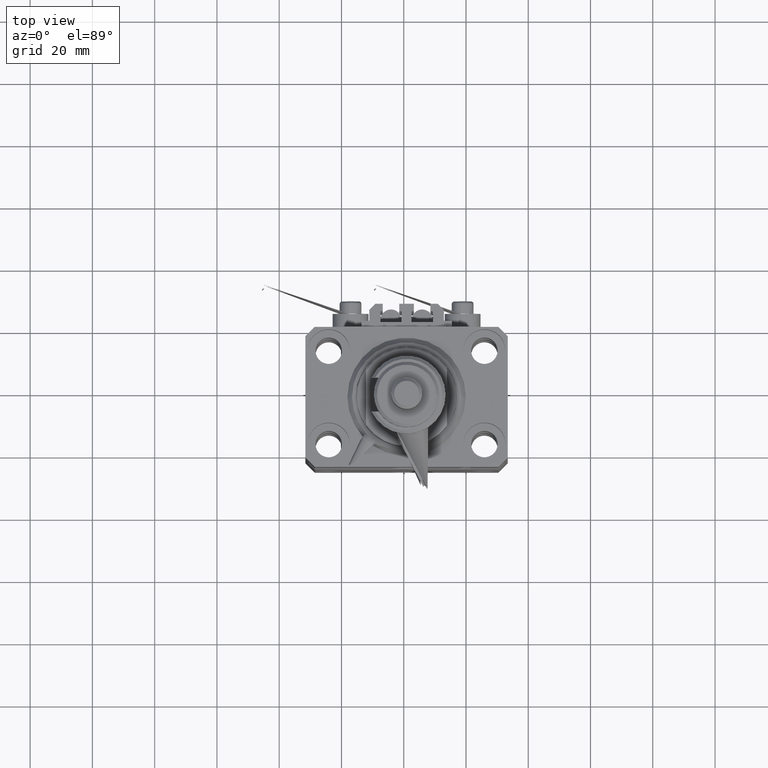
[diagram: clean part render]
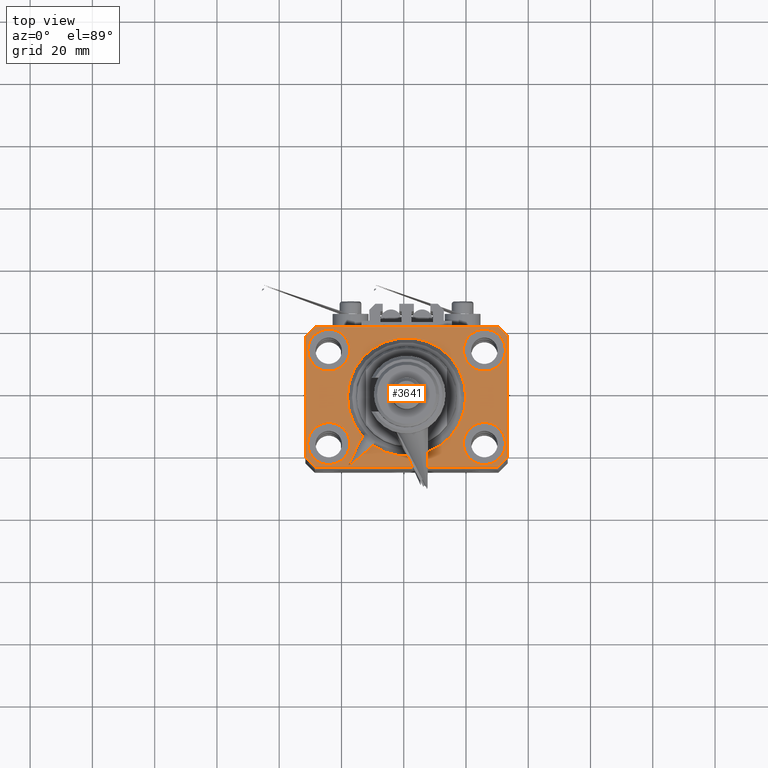
[diagram: same view with one face highlighted and labeled with its STEP entity id]
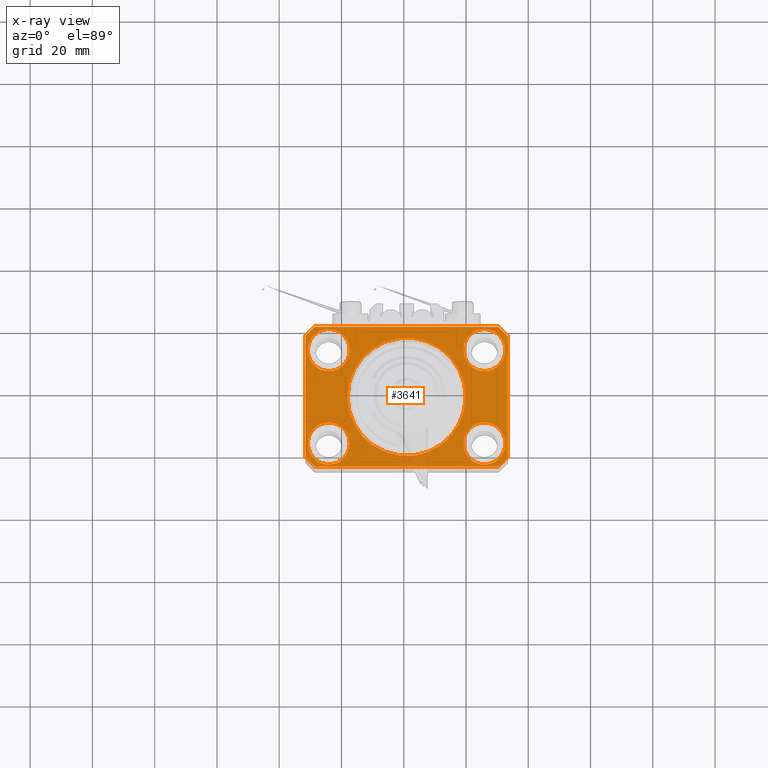
[diagram: x-ray of the same camera — body ghosted, the highlighted face saturated]
A machine part, top view. The second image highlights one B-rep face of the part: STEP entity #3641.
The next image is the same camera in x-ray: the body ghosted, the highlighted face saturated — about 0% of this face is hidden behind the body in this view.
In plain terms, the highlighted planar face has unit normal (0, 0, 1).
Its self-contained STEP definition (entity closure, byte-faithful):
#42 = VERTEX_POINT ( 'NONE', #15249 ) ;
#117 = LINE ( 'NONE', #18248, #11905 ) ;
#422 = ORIENTED_EDGE ( 'NONE', *, *, #37680, .F. ) ;
#539 = AXIS2_PLACEMENT_3D ( 'NONE', #50625, #26974, #8294 ) ;
#754 = CIRCLE ( 'NONE', #43870, 6.749999999958452790 ) ;
#1193 = AXIS2_PLACEMENT_3D ( 'NONE', #25456, #22605, #10686 ) ;
#1553 = DIRECTION ( 'NONE',  ( 1.000000000000000000, 0.000000000000000000, 0.000000000000000000 ) ) ;
#1557 = DIRECTION ( 'NONE',  ( 0.000000000000000000, 0.000000000000000000, 1.000000000000000000 ) ) ;
#1648 = VECTOR ( 'NONE', #26004, 1000.000000000000114 ) ;
#2068 = EDGE_CURVE ( 'NONE', #37032, #7257, #37872, .T. ) ;
#2097 = FACE_BOUND ( 'NONE', #37804, .T. ) ;
#2256 = LINE ( 'NONE', #30010, #40400 ) ;
#2539 = VERTEX_POINT ( 'NONE', #11326 ) ;
#2871 = FACE_BOUND ( 'NONE', #32856, .T. ) ;
#3470 = EDGE_LOOP ( 'NONE', ( #422, #36733 ) ) ;
#3641 = ADVANCED_FACE ( 'NONE', ( #2871, #2097, #30617, #46205, #26730, #38667 ), #34776, .T. ) ;
#3865 = ORIENTED_EDGE ( 'NONE', *, *, #35394, .T. ) ;
#5088 = CIRCLE ( 'NONE', #39916, 6.749999999977465137 ) ;
#5517 = DIRECTION ( 'NONE',  ( 0.000000000000000000, 0.000000000000000000, 1.000000000000000000 ) ) ;
#5659 = CARTESIAN_POINT ( 'NONE',  ( -25.00000000000000355, -15.00000000000000000, 0.000000000000000000 ) ) ;
#5771 = VECTOR ( 'NONE', #20051, 1000.000000000000000 ) ;
#7257 = VERTEX_POINT ( 'NONE', #38482 ) ;
#7513 = ORIENTED_EDGE ( 'NONE', *, *, #25042, .F. ) ;
#7536 = VERTEX_POINT ( 'NONE', #39892 ) ;
#7652 = CIRCLE ( 'NONE', #31685, 19.00000000000000000 ) ;
#8294 = DIRECTION ( 'NONE',  ( 1.000000000000000000, 0.000000000000000000, -0.000000000000000000 ) ) ;
#8834 = CARTESIAN_POINT ( 'NONE',  ( -29.49999999999650413, 22.49999999999949907, 0.000000000000000000 ) ) ;
#9163 = DIRECTION ( 'NONE',  ( 0.000000000000000000, 0.000000000000000000, 1.000000000000000000 ) ) ;
#9620 = LINE ( 'NONE', #17131, #20019 ) ;
#9776 = EDGE_CURVE ( 'NONE', #2539, #47836, #754, .T. ) ;
#9804 = DIRECTION ( 'NONE',  ( 0.000000000000000000, 0.000000000000000000, 1.000000000000000000 ) ) ;
#9860 = VERTEX_POINT ( 'NONE', #33003 ) ;
#9956 = DIRECTION ( 'NONE',  ( 1.000000000000000000, 1.176083712526788232E-16, 0.000000000000000000 ) ) ;
#10686 = DIRECTION ( 'NONE',  ( 1.000000000000000000, 0.000000000000000000, 0.000000000000000000 ) ) ;
#11326 = CARTESIAN_POINT ( 'NONE',  ( 31.74999999995845101, 15.00000000000000888, 0.000000000000000000 ) ) ;
#11690 = CARTESIAN_POINT ( 'NONE',  ( -18.24999999995846167, -15.00000000000000000, 0.000000000000000000 ) ) ;
#11732 = CIRCLE ( 'NONE', #39076, 6.749999999977465137 ) ;
#11866 = DIRECTION ( 'NONE',  ( 0.000000000000000000, 0.000000000000000000, 1.000000000000000000 ) ) ;
#11905 = VECTOR ( 'NONE', #9956, 1000.000000000000000 ) ;
#12010 = CIRCLE ( 'NONE', #31090, 6.750000000022533087 ) ;
#12245 = ORIENTED_EDGE ( 'NONE', *, *, #28558, .T. ) ;
#12912 = EDGE_LOOP ( 'NONE', ( #3865, #16751, #12245, #30642, #32665, #44250, #32072, #26384 ) ) ;
#13772 = VERTEX_POINT ( 'NONE', #16860 ) ;
#13799 = LINE ( 'NONE', #48838, #19836 ) ;
#13802 = DIRECTION ( 'NONE',  ( 0.7071067811865474617, -0.7071067811865474617, 0.000000000000000000 ) ) ;
#13814 = VERTEX_POINT ( 'NONE', #48528 ) ;
#14424 = ORIENTED_EDGE ( 'NONE', *, *, #50937, .F. ) ;
#15249 = CARTESIAN_POINT ( 'NONE',  ( -32.49999999999650413, 19.49999999999949907, 0.000000000000000000 ) ) ;
#15781 = VERTEX_POINT ( 'NONE', #17071 ) ;
#16160 = CIRCLE ( 'NONE', #45996, 6.749999999958452790 ) ;
#16751 = ORIENTED_EDGE ( 'NONE', *, *, #37491, .T. ) ;
#16853 = EDGE_CURVE ( 'NONE', #21218, #7536, #40716, .T. ) ;
#16860 = CARTESIAN_POINT ( 'NONE',  ( -29.49999999999650413, -22.49999999999949907, 0.000000000000000000 ) ) ;
#17071 = CARTESIAN_POINT ( 'NONE',  ( -31.75000000002253842, 15.00000000000000000, 0.000000000000000000 ) ) ;
#17131 = CARTESIAN_POINT ( 'NONE',  ( 32.49999999999651124, -19.49999999999949196, 0.000000000000000000 ) ) ;
#17466 = CARTESIAN_POINT ( 'NONE',  ( 0.000000000000000000, 0.000000000000000000, 0.000000000000000000 ) ) ;
#17507 = EDGE_CURVE ( 'NONE', #21864, #13814, #5088, .T. ) ;
#18043 = CARTESIAN_POINT ( 'NONE',  ( 32.49999999999651124, -19.49999999999949196, 0.000000000000000000 ) ) ;
#18248 = CARTESIAN_POINT ( 'NONE',  ( -29.49999999999650413, -22.49999999999949907, 0.000000000000000000 ) ) ;
#19193 = VERTEX_POINT ( 'NONE', #22969 ) ;
#19275 = EDGE_CURVE ( 'NONE', #46309, #9860, #7652, .T. ) ;
#19836 = VECTOR ( 'NONE', #45469, 1000.000000000000000 ) ;
#19908 = DIRECTION ( 'NONE',  ( 1.000000000000000000, 0.000000000000000000, 0.000000000000000000 ) ) ;
#20019 = VECTOR ( 'NONE', #24919, 1000.000000000000000 ) ;
#20051 = DIRECTION ( 'NONE',  ( 0.7071067811865483499, 0.7071067811865466846, 0.000000000000000000 ) ) ;
#20166 = CIRCLE ( 'NONE', #1193, 6.750000000022533087 ) ;
#20370 = CARTESIAN_POINT ( 'NONE',  ( 18.25000000002253842, -15.00000000000000000, 0.000000000000000000 ) ) ;
#21218 = VERTEX_POINT ( 'NONE', #11690 ) ;
#21529 = DIRECTION ( 'NONE',  ( 0.000000000000000000, 0.000000000000000000, 1.000000000000000000 ) ) ;
#21864 = VERTEX_POINT ( 'NONE', #20370 ) ;
#21926 = EDGE_LOOP ( 'NONE', ( #27073, #7513 ) ) ;
#22605 = DIRECTION ( 'NONE',  ( 0.000000000000000000, 0.000000000000000000, 1.000000000000000000 ) ) ;
#22882 = CARTESIAN_POINT ( 'NONE',  ( -29.49999999999650413, 22.49999999999949907, 0.000000000000000000 ) ) ;
#22969 = CARTESIAN_POINT ( 'NONE',  ( -18.24999999997747224, 15.00000000000000000, 0.000000000000000000 ) ) ;
#24131 = AXIS2_PLACEMENT_3D ( 'NONE', #47425, #11866, #19908 ) ;
#24919 = DIRECTION ( 'NONE',  ( 1.334402673828349134E-14, 1.000000000000000000, 0.000000000000000000 ) ) ;
#24969 = CARTESIAN_POINT ( 'NONE',  ( -25.00000000000000355, 15.00000000000000000, 0.000000000000000000 ) ) ;
#24990 = DIRECTION ( 'NONE',  ( 0.000000000000000000, 0.000000000000000000, 1.000000000000000000 ) ) ;
#25042 = EDGE_CURVE ( 'NONE', #15781, #19193, #12010, .T. ) ;
#25456 = CARTESIAN_POINT ( 'NONE',  ( -25.00000000000000355, 15.00000000000000000, 0.000000000000000000 ) ) ;
#25615 = DIRECTION ( 'NONE',  ( 1.000000000000000000, 0.000000000000000000, 0.000000000000000000 ) ) ;
#26004 = DIRECTION ( 'NONE',  ( -0.7071067811865474617, -0.7071067811865474617, 0.000000000000000000 ) ) ;
#26092 = CARTESIAN_POINT ( 'NONE',  ( 18.25000000004154543, 15.00000000000000888, 0.000000000000000000 ) ) ;
#26384 = ORIENTED_EDGE ( 'NONE', *, *, #2068, .T. ) ;
#26730 = FACE_BOUND ( 'NONE', #3470, .T. ) ;
#26974 = DIRECTION ( 'NONE',  ( 0.000000000000000000, 0.000000000000000000, 1.000000000000000000 ) ) ;
#27073 = ORIENTED_EDGE ( 'NONE', *, *, #46640, .F. ) ;
#27139 = CARTESIAN_POINT ( 'NONE',  ( 32.49999999999702993, 19.49999999999945999, 0.000000000000000000 ) ) ;
#27401 = EDGE_CURVE ( 'NONE', #7536, #21218, #30405, .T. ) ;
#27830 = LINE ( 'NONE', #43665, #5771 ) ;
#28342 = DIRECTION ( 'NONE',  ( 0.000000000000000000, 0.000000000000000000, 1.000000000000000000 ) ) ;
#28558 = EDGE_CURVE ( 'NONE', #42, #41859, #2256, .T. ) ;
#29450 = EDGE_LOOP ( 'NONE', ( #48467, #14424 ) ) ;
#30010 = CARTESIAN_POINT ( 'NONE',  ( -32.49999999999650413, 19.49999999999949907, 0.000000000000000000 ) ) ;
#30059 = EDGE_CURVE ( 'NONE', #41859, #13772, #49373, .T. ) ;
#30405 = CIRCLE ( 'NONE', #46158, 6.750000000041541881 ) ;
#30617 = FACE_BOUND ( 'NONE', #29450, .T. ) ;
#30642 = ORIENTED_EDGE ( 'NONE', *, *, #30059, .T. ) ;
#31090 = AXIS2_PLACEMENT_3D ( 'NONE', #24969, #5517, #32517 ) ;
#31508 = CIRCLE ( 'NONE', #42291, 19.00000000000000000 ) ;
#31685 = AXIS2_PLACEMENT_3D ( 'NONE', #17466, #24990, #32536 ) ;
#32072 = ORIENTED_EDGE ( 'NONE', *, *, #40540, .T. ) ;
#32517 = DIRECTION ( 'NONE',  ( 1.000000000000000000, 0.000000000000000000, 0.000000000000000000 ) ) ;
#32536 = DIRECTION ( 'NONE',  ( 1.000000000000000000, 0.000000000000000000, 0.000000000000000000 ) ) ;
#32665 = ORIENTED_EDGE ( 'NONE', *, *, #48034, .T. ) ;
#32733 = CARTESIAN_POINT ( 'NONE',  ( 29.49999999999650413, -22.49999999999949196, 0.000000000000000000 ) ) ;
#32856 = EDGE_LOOP ( 'NONE', ( #37718, #48827 ) ) ;
#33003 = CARTESIAN_POINT ( 'NONE',  ( 19.00000000000000000, 0.000000000000000000, 0.000000000000000000 ) ) ;
#33257 = EDGE_CURVE ( 'NONE', #45597, #41243, #27830, .T. ) ;
#34127 = ORIENTED_EDGE ( 'NONE', *, *, #17507, .F. ) ;
#34164 = DIRECTION ( 'NONE',  ( 0.000000000000000000, -1.000000000000000000, 0.000000000000000000 ) ) ;
#34776 = PLANE ( 'NONE',  #539 ) ;
#35394 = EDGE_CURVE ( 'NONE', #7257, #37754, #13799, .T. ) ;
#35434 = CARTESIAN_POINT ( 'NONE',  ( -19.00000000000000000, 2.326828918379970970E-15, 0.000000000000000000 ) ) ;
#36326 = VECTOR ( 'NONE', #13802, 1000.000000000000114 ) ;
#36733 = ORIENTED_EDGE ( 'NONE', *, *, #19275, .F. ) ;
#37032 = VERTEX_POINT ( 'NONE', #27139 ) ;
#37103 = CARTESIAN_POINT ( 'NONE',  ( 24.99999999999999645, 15.00000000000000888, 0.000000000000000000 ) ) ;
#37491 = EDGE_CURVE ( 'NONE', #37754, #42, #38203, .T. ) ;
#37680 = EDGE_CURVE ( 'NONE', #9860, #46309, #31508, .T. ) ;
#37718 = ORIENTED_EDGE ( 'NONE', *, *, #16853, .F. ) ;
#37754 = VERTEX_POINT ( 'NONE', #8834 ) ;
#37804 = EDGE_LOOP ( 'NONE', ( #45404, #34127 ) ) ;
#37836 = DIRECTION ( 'NONE',  ( 0.000000000000000000, 0.000000000000000000, 1.000000000000000000 ) ) ;
#37872 = LINE ( 'NONE', #41504, #51088 ) ;
#38203 = LINE ( 'NONE', #22882, #1648 ) ;
#38453 = CARTESIAN_POINT ( 'NONE',  ( -32.49999999999650413, -19.49999999999949907, 0.000000000000000000 ) ) ;
#38482 = CARTESIAN_POINT ( 'NONE',  ( 29.49999999999707967, 22.49999999999951328, 0.000000000000000000 ) ) ;
#38667 = FACE_OUTER_BOUND ( 'NONE', #12912, .T. ) ;
#39076 = AXIS2_PLACEMENT_3D ( 'NONE', #48991, #9804, #25615 ) ;
#39892 = CARTESIAN_POINT ( 'NONE',  ( -31.75000000004154899, -15.00000000000000000, 0.000000000000000000 ) ) ;
#39916 = AXIS2_PLACEMENT_3D ( 'NONE', #40046, #9163, #48355 ) ;
#40046 = CARTESIAN_POINT ( 'NONE',  ( 25.00000000000000355, -15.00000000000000000, 0.000000000000000000 ) ) ;
#40175 = EDGE_CURVE ( 'NONE', #13814, #21864, #11732, .T. ) ;
#40400 = VECTOR ( 'NONE', #34164, 1000.000000000000000 ) ;
#40540 = EDGE_CURVE ( 'NONE', #41243, #37032, #9620, .T. ) ;
#40716 = CIRCLE ( 'NONE', #24131, 6.750000000041541881 ) ;
#41243 = VERTEX_POINT ( 'NONE', #18043 ) ;
#41504 = CARTESIAN_POINT ( 'NONE',  ( 32.49999999999702993, 19.49999999999945999, 0.000000000000000000 ) ) ;
#41859 = VERTEX_POINT ( 'NONE', #44393 ) ;
#42239 = DIRECTION ( 'NONE',  ( 1.000000000000000000, 0.000000000000000000, 0.000000000000000000 ) ) ;
#42291 = AXIS2_PLACEMENT_3D ( 'NONE', #49046, #21529, #1553 ) ;
#43665 = CARTESIAN_POINT ( 'NONE',  ( 29.49999999999650413, -22.49999999999949196, 0.000000000000000000 ) ) ;
#43870 = AXIS2_PLACEMENT_3D ( 'NONE', #47572, #28342, #44178 ) ;
#44178 = DIRECTION ( 'NONE',  ( 1.000000000000000000, 0.000000000000000000, 0.000000000000000000 ) ) ;
#44250 = ORIENTED_EDGE ( 'NONE', *, *, #33257, .T. ) ;
#44393 = CARTESIAN_POINT ( 'NONE',  ( -32.49999999999650413, -19.49999999999949907, 0.000000000000000000 ) ) ;
#45404 = ORIENTED_EDGE ( 'NONE', *, *, #40175, .F. ) ;
#45469 = DIRECTION ( 'NONE',  ( -1.000000000000000000, -2.352167425053553784E-16, 0.000000000000000000 ) ) ;
#45597 = VERTEX_POINT ( 'NONE', #32733 ) ;
#45996 = AXIS2_PLACEMENT_3D ( 'NONE', #37103, #1557, #49053 ) ;
#46158 = AXIS2_PLACEMENT_3D ( 'NONE', #5659, #37836, #42239 ) ;
#46205 = FACE_BOUND ( 'NONE', #21926, .T. ) ;
#46309 = VERTEX_POINT ( 'NONE', #35434 ) ;
#46640 = EDGE_CURVE ( 'NONE', #19193, #15781, #20166, .T. ) ;
#47425 = CARTESIAN_POINT ( 'NONE',  ( -25.00000000000000355, -15.00000000000000000, 0.000000000000000000 ) ) ;
#47572 = CARTESIAN_POINT ( 'NONE',  ( 24.99999999999999645, 15.00000000000000888, 0.000000000000000000 ) ) ;
#47836 = VERTEX_POINT ( 'NONE', #26092 ) ;
#48034 = EDGE_CURVE ( 'NONE', #13772, #45597, #117, .T. ) ;
#48355 = DIRECTION ( 'NONE',  ( 1.000000000000000000, 0.000000000000000000, 0.000000000000000000 ) ) ;
#48467 = ORIENTED_EDGE ( 'NONE', *, *, #9776, .F. ) ;
#48528 = CARTESIAN_POINT ( 'NONE',  ( 31.74999999997746869, -15.00000000000000000, 0.000000000000000000 ) ) ;
#48827 = ORIENTED_EDGE ( 'NONE', *, *, #27401, .F. ) ;
#48838 = CARTESIAN_POINT ( 'NONE',  ( 29.49999999999707967, 22.49999999999951328, 0.000000000000000000 ) ) ;
#48991 = CARTESIAN_POINT ( 'NONE',  ( 25.00000000000000355, -15.00000000000000000, 0.000000000000000000 ) ) ;
#49046 = CARTESIAN_POINT ( 'NONE',  ( 0.000000000000000000, 0.000000000000000000, 0.000000000000000000 ) ) ;
#49053 = DIRECTION ( 'NONE',  ( 1.000000000000000000, 0.000000000000000000, 0.000000000000000000 ) ) ;
#49373 = LINE ( 'NONE', #38453, #36326 ) ;
#49560 = DIRECTION ( 'NONE',  ( -0.7071067811865352493, 0.7071067811865597852, 0.000000000000000000 ) ) ;
#50625 = CARTESIAN_POINT ( 'NONE',  ( 0.000000000000000000, 0.000000000000000000, 0.000000000000000000 ) ) ;
#50937 = EDGE_CURVE ( 'NONE', #47836, #2539, #16160, .T. ) ;
#51088 = VECTOR ( 'NONE', #49560, 1000.000000000000000 ) ;